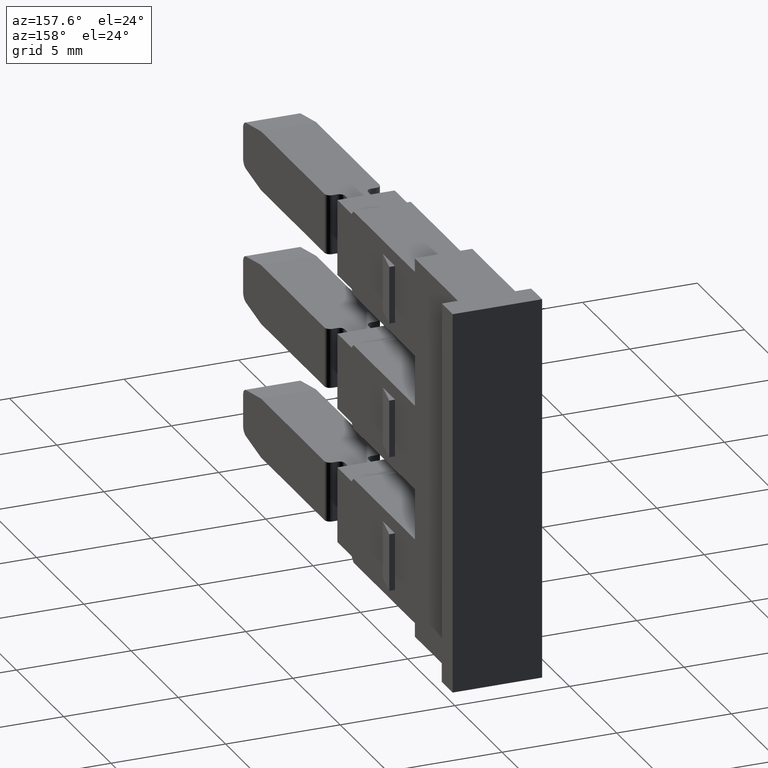
[diagram: clean part render]
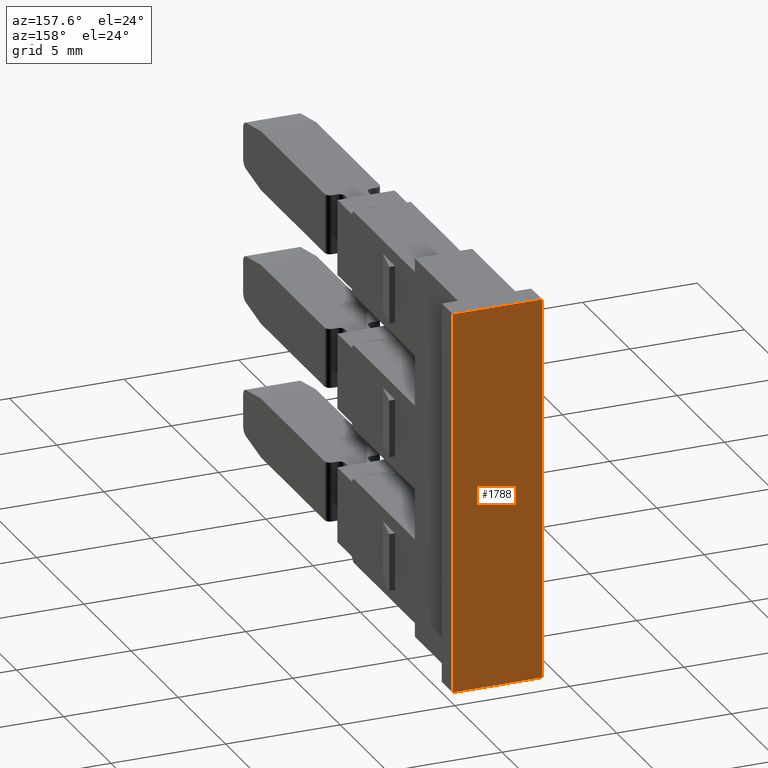
[diagram: same view with one face highlighted and labeled with its STEP entity id]
A machine part, auxiliary view. The second image highlights one B-rep face of the part: STEP entity #1788.
In plain terms, the highlighted planar face has unit normal (-0, 1, 0).
Its self-contained STEP definition (entity closure, byte-faithful):
#106 = AXIS2_PLACEMENT_3D ( 'NONE', #758, #726, #771 ) ;
#722 = FACE_OUTER_BOUND ( 'NONE', #2615, .T. ) ;
#726 = DIRECTION ( 'NONE',  ( -2.625242473304434000E-014, 1.000000000000000000, 6.606529101504750500E-015 ) ) ;
#751 = PLANE ( 'NONE',  #106 ) ;
#758 = CARTESIAN_POINT ( 'NONE',  ( 1459.718071211365900, 1009.692679537520100, -112.3308473691034000 ) ) ;
#771 = DIRECTION ( 'NONE',  ( -1.000000000000000000, -2.625242473304434000E-014, 0.0000000000000000000 ) ) ;
#1442 = VECTOR ( 'NONE', #3806, 1000.000000000000000 ) ;
#1474 = VECTOR ( 'NONE', #3850, 1000.000000000000000 ) ;
#1486 = VECTOR ( 'NONE', #3754, 1000.000000000000000 ) ;
#1495 = VECTOR ( 'NONE', #3935, 1000.000000000000000 ) ;
#1788 = ADVANCED_FACE ( 'NONE', ( #722 ), #751, .T. ) ;
#2016 = EDGE_CURVE ( 'NONE', #2311, #2336, #3715, .T. ) ;
#2027 = EDGE_CURVE ( 'NONE', #2321, #2336, #3786, .T. ) ;
#2054 = EDGE_CURVE ( 'NONE', #2321, #2425, #3842, .T. ) ;
#2074 = EDGE_CURVE ( 'NONE', #2311, #2425, #3956, .T. ) ;
#2311 = VERTEX_POINT ( 'NONE', #4073 ) ;
#2321 = VERTEX_POINT ( 'NONE', #4081 ) ;
#2336 = VERTEX_POINT ( 'NONE', #4103 ) ;
#2425 = VERTEX_POINT ( 'NONE', #4171 ) ;
#2615 = EDGE_LOOP ( 'NONE', ( #2828, #2839, #2848, #2813 ) ) ;
#2813 = ORIENTED_EDGE ( 'NONE', *, *, #2074, .F. ) ;
#2828 = ORIENTED_EDGE ( 'NONE', *, *, #2016, .T. ) ;
#2839 = ORIENTED_EDGE ( 'NONE', *, *, #2027, .F. ) ;
#2848 = ORIENTED_EDGE ( 'NONE', *, *, #2054, .T. ) ;
#3715 = LINE ( 'NONE', #3761, #1486 ) ;
#3754 = DIRECTION ( 'NONE',  ( 1.734374079839205100E-028, -6.606529101504750500E-015, 1.000000000000000000 ) ) ;
#3761 = CARTESIAN_POINT ( 'NONE',  ( 1456.068071211366000, 1009.692679537520100, -112.3308473691034000 ) ) ;
#3786 = LINE ( 'NONE', #3790, #1442 ) ;
#3790 = CARTESIAN_POINT ( 'NONE',  ( 1457.871626077922200, 1009.692679537512000, -77.04999999999265000 ) ) ;
#3806 = DIRECTION ( 'NONE',  ( -1.000000000000000000, 4.794056557034578200E-028, -5.145373498329340500E-015 ) ) ;
#3842 = LINE ( 'NONE', #3849, #1474 ) ;
#3849 = CARTESIAN_POINT ( 'NONE',  ( 1459.968071211366100, 1009.692679537520100, -112.3308473691034000 ) ) ;
#3850 = DIRECTION ( 'NONE',  ( -1.734374079839205100E-028, 6.606529101504750500E-015, -1.000000000000000000 ) ) ;
#3935 = DIRECTION ( 'NONE',  ( 1.000000000000000000, -1.591874026890570400E-028, -1.715124499443520100E-015 ) ) ;
#3936 = CARTESIAN_POINT ( 'NONE',  ( 1457.871626077922200, 1009.692679537505200, -93.74999999998745200 ) ) ;
#3956 = LINE ( 'NONE', #3936, #1495 ) ;
#4073 = CARTESIAN_POINT ( 'NONE',  ( 1456.068071211366000, 1009.692679537507200, -93.74999999998745200 ) ) ;
#4081 = CARTESIAN_POINT ( 'NONE',  ( 1459.968071211366100, 1009.692679537514100, -77.04999999999265000 ) ) ;
#4103 = CARTESIAN_POINT ( 'NONE',  ( 1456.068071211366000, 1009.692679537514100, -77.04999999999267900 ) ) ;
#4171 = CARTESIAN_POINT ( 'NONE',  ( 1459.968071211366100, 1009.692679537507200, -93.74999999998740900 ) ) ;